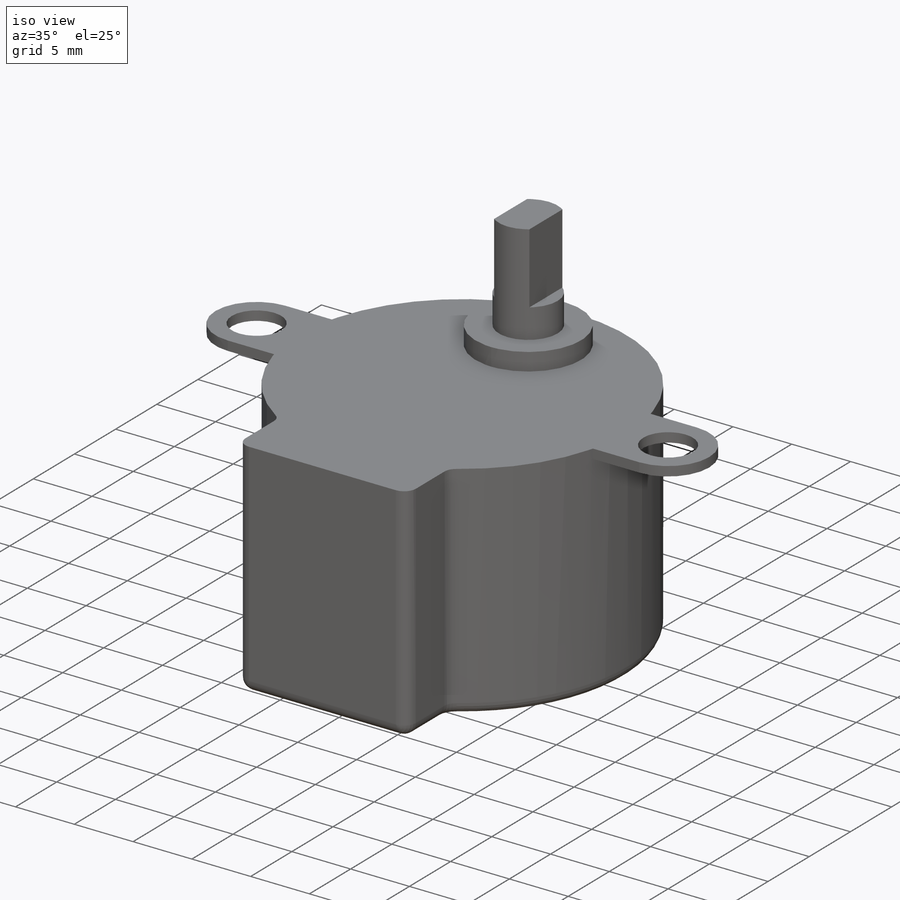
[diagram: iso view]
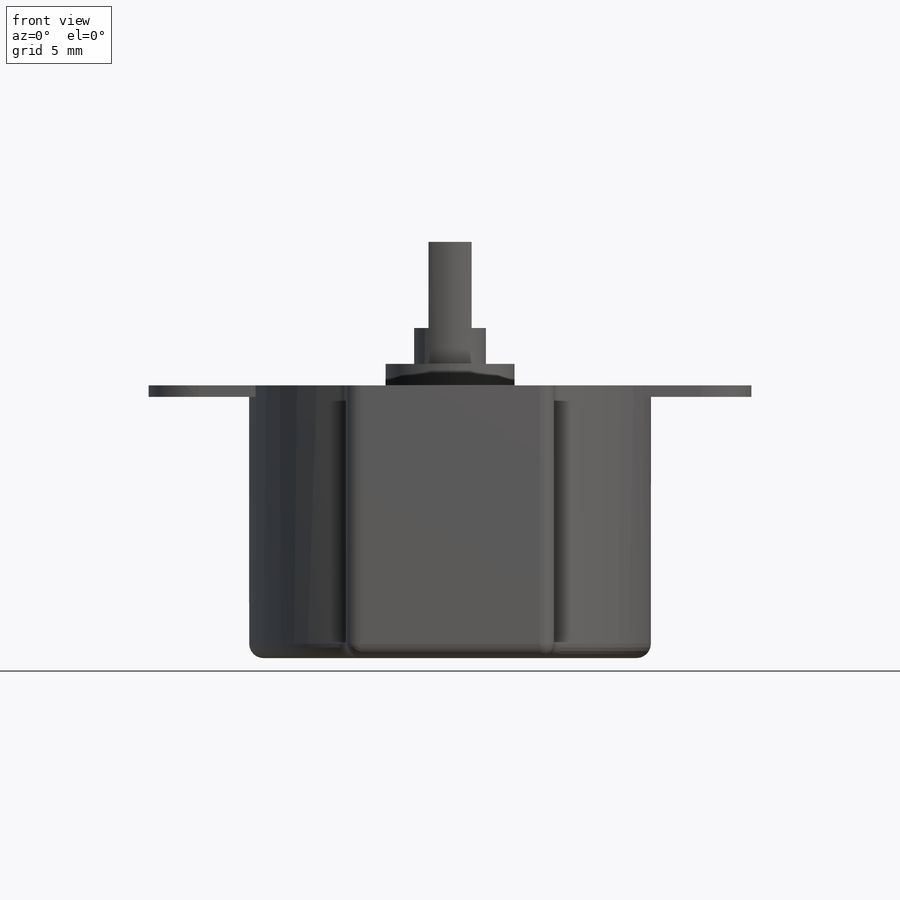
[diagram: front view]
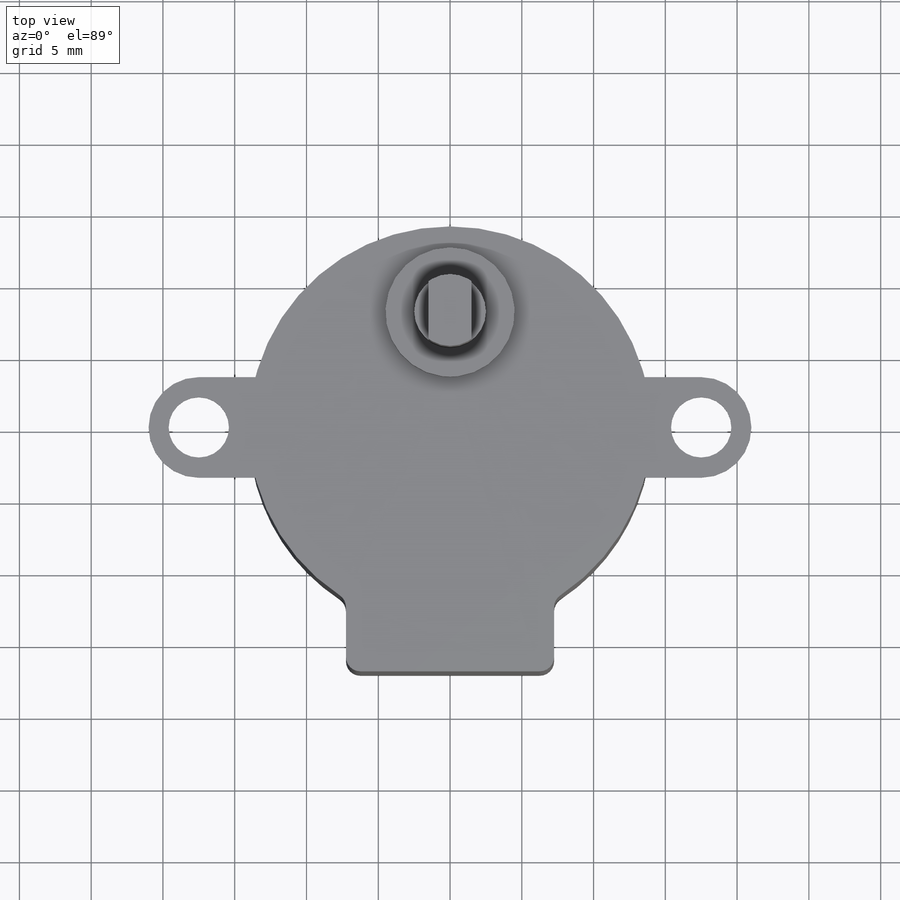
[diagram: top view]
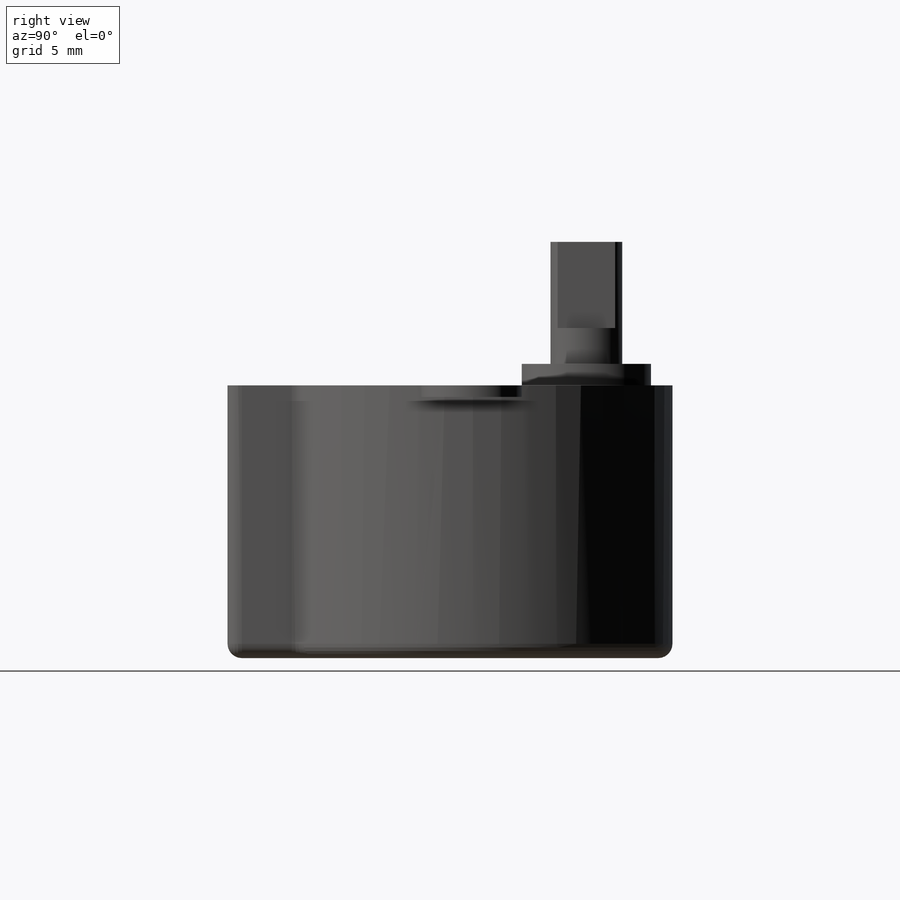
[diagram: right view]
SOLIDWORKS PART (.sldprt)
format: sldprt  version: not decoded by parser v0  size: 226,816 bytes
history: native  units: mm
features: sketch x5, extrude x4, material x1, cut_extrude x1, fillet x1 (+12 scaffold rows collapsed)
feature tree (24):
  scaffold x12  (default folders/planes/origin — collapsed)
  material  "Material <not specified>"
  sketch  "Sketch1"  dims[c1.D1=28.0mm c1.D2=14.5mm c1.D3=7.25mm c1.D4=14.5mm c2.D4=17.0mm]
  extrude  "Boss-Extrude1"  Depth=19mm
  sketch  "Sketch2"  dims[D1=9.0mm D2=5.0mm D3=25.0mm]
  extrude  "Boss-Extrude2"  Depth=1.5mm
  extrude  "Boss-Extrude3"  [1 undecoded]
  sketch  "Sketch2<3>"  dims[D1=10.0mm]
  sketch  "Sketch3"  dims[D3=5.08mm D1=3.0mm D2=1.5mm]
  cut_extrude  "Cut-Extrude1"  Depth=6mm
  fillet  "Fillet1"  Radius=1mm
  sketch  "Sketch4"  dims[c1.D2=4.2mm c1.D3=4.2mm c1.D4=4.2mm c1.D6=3.5mm c1.D1=35.0mm c2.D4=17.5mm c2.D5=7.0mm c3.D4=8.0mm c3.D6=17.5mm]
  extrude  "Boss-Extrude4"  Depth=0.8mm
decode coverage: 10 of 11 modeling features carry decoded parameters
note: 1 parameter value undecoded
note: suppression state not decoded; provenance and decode notes live in map.json
